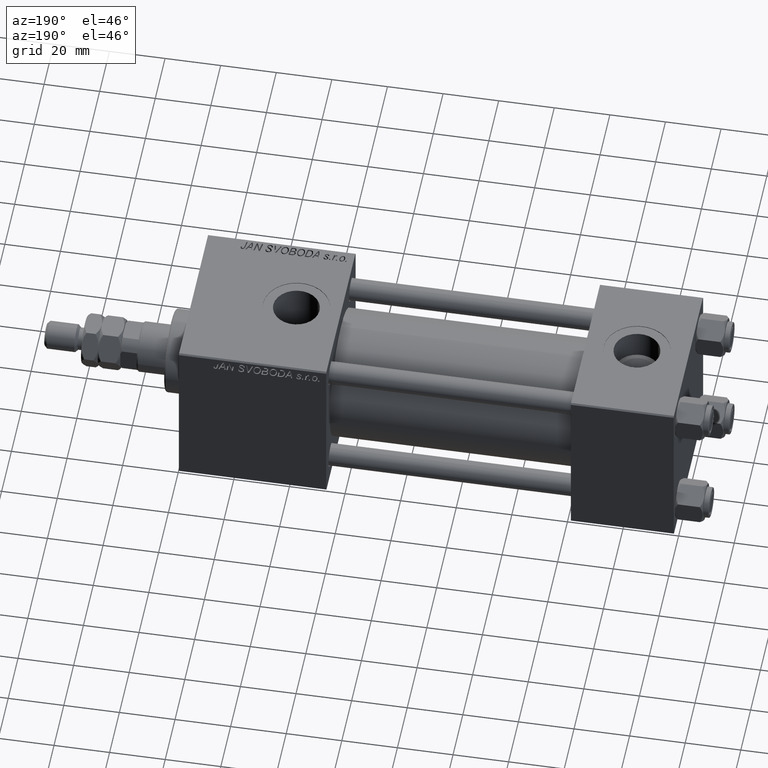
[diagram: clean part render]
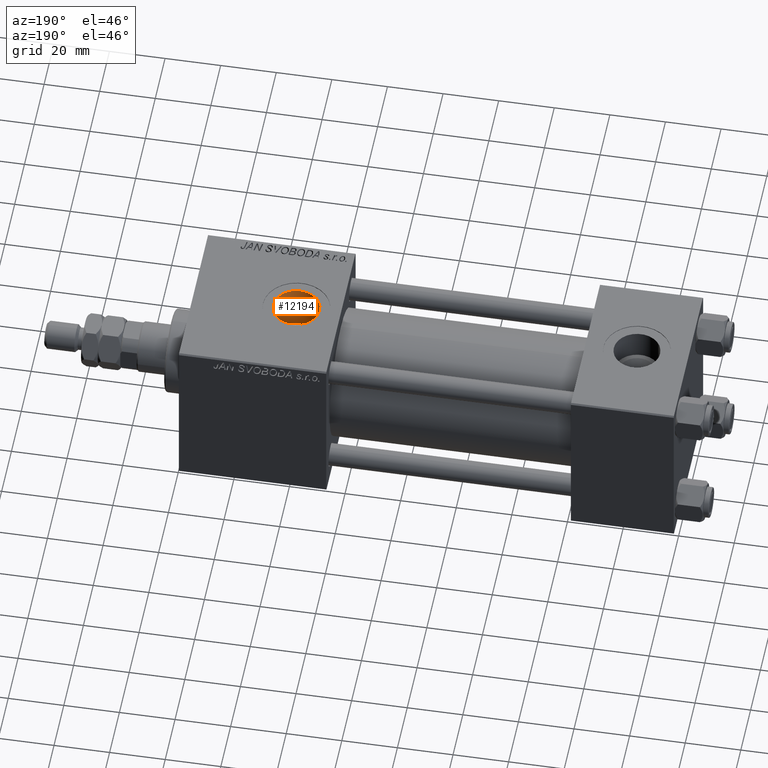
[diagram: same view with one face highlighted and labeled with its STEP entity id]
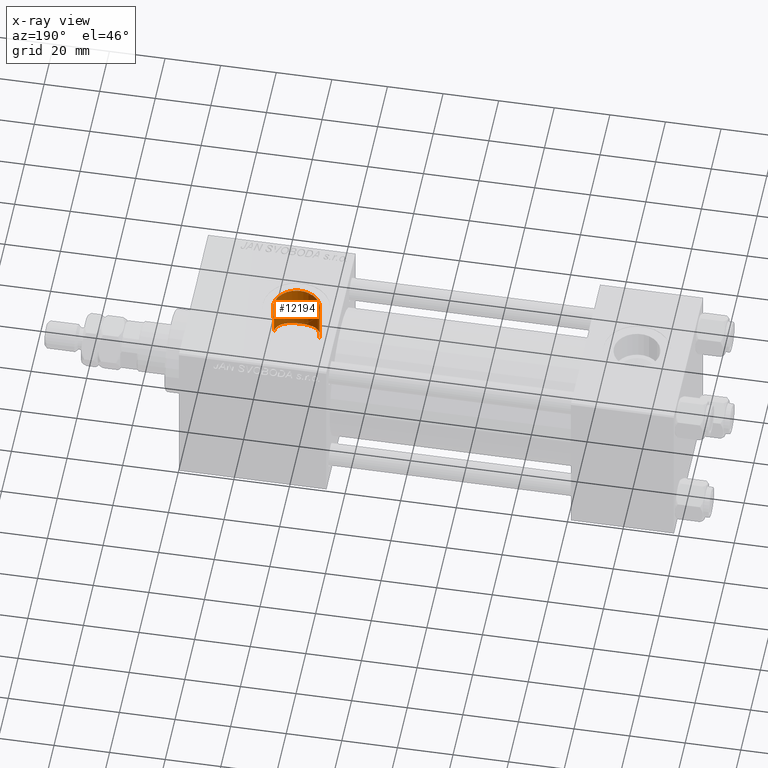
[diagram: x-ray of the same camera — body ghosted, the highlighted face saturated]
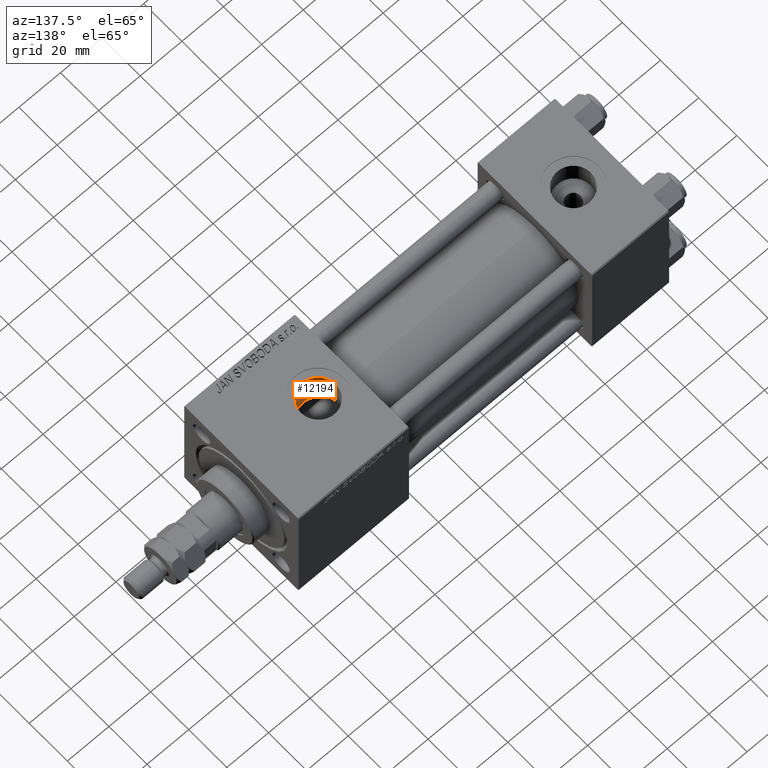
[diagram: same view with one face highlighted and labeled with its STEP entity id]
A machine part, auxiliary view. The second image highlights one B-rep face of the part: STEP entity #12194.
The next image is the same camera in x-ray: the body ghosted, the highlighted face saturated — about 0% of this face is hidden behind the body in this view.
A second angle (auxiliary view) of the same face is appended — the face is thin or edge-on in the first view.
In plain terms, the highlighted cylindrical surface (edge-blend (fillet) strip) has radius 8.33 mm, axis along (0, 0, -1).
Its self-contained STEP definition (entity closure, byte-faithful):
#8 = CARTESIAN_POINT ( 'NONE',  ( 147.4206836242460952, -5.313397845573686773, 14.56247739527535501 ) ) ;
#274 = CARTESIAN_POINT ( 'NONE',  ( 149.1551794102611268, -1.779571906496539846, 15.40624408871751427 ) ) ;
#1331 = CARTESIAN_POINT ( 'NONE',  ( 146.7052856138599850, -6.075010833985298397, 14.26111244594541283 ) ) ;
#1867 = CARTESIAN_POINT ( 'NONE',  ( 135.1746853513074598, -5.960066042194010372, 14.30973504695704079 ) ) ;
#1935 = ORIENTED_EDGE ( 'NONE', *, *, #12082, .T. ) ;
#2144 = CARTESIAN_POINT ( 'NONE',  ( 146.8918120434206571, -5.894370187512529391, 14.33695445255752965 ) ) ;
#4362 = B_SPLINE_CURVE_WITH_KNOTS ( 'NONE', 3,
 ( #43777, #38912, #6184, #31622 ),
 .UNSPECIFIED., .F., .F.,
 ( 4, 4 ),
 ( 0.0007063285354566956834, 0.001412657070913403944 ),
 .UNSPECIFIED. ) ;
#5125 = CARTESIAN_POINT ( 'NONE',  ( 138.0280831876513048, -7.800005974199693881, 13.39679247833316111 ) ) ;
#5658 = CARTESIAN_POINT ( 'NONE',  ( 145.7029727236500776, -6.895596990293902273, 13.88498614261385633 ) ) ;
#6184 = CARTESIAN_POINT ( 'NONE',  ( 149.3200361445783244, -0.4708856903044693065, 22.49630535626710426 ) ) ;
#6197 = CARTESIAN_POINT ( 'NONE',  ( 146.1223761457301578, -6.589288648760171618, 14.03465761673835566 ) ) ;
#6502 = DIRECTION ( 'NONE',  ( -0.000000000000000000, -0.000000000000000000, 1.000000000000000000 ) ) ;
#7531 = DIRECTION ( 'NONE',  ( 0.000000000000000000, 0.000000000000000000, -1.000000000000000000 ) ) ;
#8394 = CARTESIAN_POINT ( 'NONE',  ( 147.9019425821537368, -4.693185279177688685, 14.77889678387129635 ) ) ;
#9185 = CARTESIAN_POINT ( 'NONE',  ( 140.1189832292044741, -8.287746620742320047, 13.09829097645578067 ) ) ;
#9581 = CARTESIAN_POINT ( 'NONE',  ( 149.2999999999999829, -0.7063285354567054863, 22.48891060056043756 ) ) ;
#10071 = CARTESIAN_POINT ( 'NONE',  ( 132.6700000000000159, -3.469446951953613794E-15, 52.79999999999999716 ) ) ;
#10309 = VECTOR ( 'NONE', #39017, 1000.000000000000000 ) ;
#10452 = CARTESIAN_POINT ( 'NONE',  ( 132.6700000000000159, 1.898304232322969090E-15, 15.50000000000000000 ) ) ;
#10834 = LINE ( 'NONE', #51651, #29349 ) ;
#11595 = CARTESIAN_POINT ( 'NONE',  ( 141.0000000000000000, -3.469446951953613794E-15, 52.79999999999999716 ) ) ;
#12082 = EDGE_CURVE ( 'NONE', #24663, #23275, #4362, .T. ) ;
#12194 = ADVANCED_FACE ( 'NONE', ( #23771 ), #44841, .F. ) ;
#12318 = VERTEX_POINT ( 'NONE', #10452 ) ;
#12931 = DIRECTION ( 'NONE',  ( -0.000000000000000000, -0.000000000000000000, -1.000000000000000000 ) ) ;
#13516 = CARTESIAN_POINT ( 'NONE',  ( 141.7336049828113573, -8.315414581110543324, 13.08103420916272874 ) ) ;
#13794 = CARTESIAN_POINT ( 'NONE',  ( 149.3300000000000125, -2.449316168263869821E-15, 29.79999999999999716 ) ) ;
#14044 = CARTESIAN_POINT ( 'NONE',  ( 143.5758055966577444, -7.926129927251720275, 13.32055475116628074 ) ) ;
#14317 = CARTESIAN_POINT ( 'NONE',  ( 143.3226885743376045, -8.004083164222295821, 13.27368299574002641 ) ) ;
#14590 = CARTESIAN_POINT ( 'NONE',  ( 139.5800126393434653, -8.212586102783001607, 13.14554677668084892 ) ) ;
#16149 = CARTESIAN_POINT ( 'NONE',  ( 149.3300000000000125, 2.755455270027974659E-15, 22.50000000000000355 ) ) ;
#17019 = VECTOR ( 'NONE', #23815, 1000.000000000000000 ) ;
#17264 = EDGE_CURVE ( 'NONE', #48067, #12318, #18203, .T. ) ;
#17353 = VERTEX_POINT ( 'NONE', #41155 ) ;
#17843 = CARTESIAN_POINT ( 'NONE',  ( 139.3130088921948015, -8.161798413422955534, 13.17727064419119287 ) ) ;
#18203 = LINE ( 'NONE', #10071, #10309 ) ;
#18448 = EDGE_CURVE ( 'NONE', #17353, #23275, #10834, .T. ) ;
#18659 = CARTESIAN_POINT ( 'NONE',  ( 133.0868517190840805, -2.655488600773507457, 15.27904856166878567 ) ) ;
#19098 = CIRCLE ( 'NONE', #25971, 8.330000000000003624 ) ;
#19702 = VERTEX_POINT ( 'NONE', #13794 ) ;
#20543 = CARTESIAN_POINT ( 'NONE',  ( 132.6700000000000159, -3.469446951953613794E-15, 29.79999999999999716 ) ) ;
#20843 = CARTESIAN_POINT ( 'NONE',  ( 149.2536282029345216, -1.251239149034661269, 15.45904091616634624 ) ) ;
#21062 = ORIENTED_EDGE ( 'NONE', *, *, #18448, .F. ) ;
#21636 = CARTESIAN_POINT ( 'NONE',  ( 134.6334646112961195, -5.396965728881683688, 14.53569325099343246 ) ) ;
#22166 = CARTESIAN_POINT ( 'NONE',  ( 138.5303836912680993, -7.973572890763260368, 13.29262183476800274 ) ) ;
#22711 = CARTESIAN_POINT ( 'NONE',  ( 142.8051925787938785, -8.136430990711639666, 13.19297154944904982 ) ) ;
#23275 = VERTEX_POINT ( 'NONE', #9581 ) ;
#23771 = FACE_OUTER_BOUND ( 'NONE', #28562, .T. ) ;
#23815 = DIRECTION ( 'NONE',  ( 0.000000000000000000, 0.000000000000000000, -1.000000000000000000 ) ) ;
#24349 = LINE ( 'NONE', #36515, #17019 ) ;
#24645 = CARTESIAN_POINT ( 'NONE',  ( 148.5428030552849634, -3.544712500972308167, 15.09119218508025817 ) ) ;
#24663 = VERTEX_POINT ( 'NONE', #16149 ) ;
#25684 = CARTESIAN_POINT ( 'NONE',  ( 134.3099837884075214, -4.990735798376649157, 14.68174191680505203 ) ) ;
#25951 = CARTESIAN_POINT ( 'NONE',  ( 135.7620717625425755, -6.482401235301967546, 14.08060569368232606 ) ) ;
#25971 = AXIS2_PLACEMENT_3D ( 'NONE', #45648, #12931, #45915 ) ;
#26216 = CARTESIAN_POINT ( 'NONE',  ( 142.5393180270792186, -8.191046880170260280, 13.15899482924554675 ) ) ;
#27897 = ORIENTED_EDGE ( 'NONE', *, *, #40210, .F. ) ;
#28562 = EDGE_LOOP ( 'NONE', ( #27897, #37893, #1935, #21062, #47730, #52910 ) ) ;
#28691 = CARTESIAN_POINT ( 'NONE',  ( 148.8491258789661629, -2.802091215934854329, 15.24672985051145346 ) ) ;
#29349 = VECTOR ( 'NONE', #6502, 1000.000000000000000 ) ;
#30270 = CARTESIAN_POINT ( 'NONE',  ( 132.9331782841942413, -2.146294661946249072, 15.35990957131595280 ) ) ;
#30542 = CARTESIAN_POINT ( 'NONE',  ( 132.6700000000000159, -0.2697275728529907046, 15.49999999999999822 ) ) ;
#31622 = CARTESIAN_POINT ( 'NONE',  ( 149.2999999999999829, -0.7063285354567054863, 22.48891060056043756 ) ) ;
#33539 = CARTESIAN_POINT ( 'NONE',  ( 148.9348013750805251, -2.549325201696632348, 15.29111667893742776 ) ) ;
#34330 = CARTESIAN_POINT ( 'NONE',  ( 135.3654057549136951, -6.140746346287170532, 14.23292720374007203 ) ) ;
#34867 = CARTESIAN_POINT ( 'NONE',  ( 140.3883139045844359, -8.311878257887807209, 13.08292216006754849 ) ) ;
#36515 = CARTESIAN_POINT ( 'NONE',  ( 149.3300000000000125, -2.449316168263869032E-15, 52.79999999999999716 ) ) ;
#37068 = CARTESIAN_POINT ( 'NONE',  ( 149.2999999999999829, -0.7063285354567054863, 15.48389808801386991 ) ) ;
#37893 = ORIENTED_EDGE ( 'NONE', *, *, #38196, .T. ) ;
#38126 = CARTESIAN_POINT ( 'NONE',  ( 132.6830689054505115, -0.5397750835096124522, 15.49296437165993012 ) ) ;
#38196 = EDGE_CURVE ( 'NONE', #19702, #24663, #24349, .T. ) ;
#38390 = CARTESIAN_POINT ( 'NONE',  ( 141.1958509774289325, -8.345110101594283236, 13.06176967618121409 ) ) ;
#38912 = CARTESIAN_POINT ( 'NONE',  ( 149.3300000000000125, -0.2354428451522331545, 22.50000000000000355 ) ) ;
#38925 = CARTESIAN_POINT ( 'NONE',  ( 136.6049117619710671, -7.095324458822770630, 13.78473450686056445 ) ) ;
#39017 = DIRECTION ( 'NONE',  ( 0.000000000000000000, 0.000000000000000000, -1.000000000000000000 ) ) ;
#39199 = CARTESIAN_POINT ( 'NONE',  ( 144.3193855547534667, -7.658212580014129855, 13.47756053925518316 ) ) ;
#39885 = EDGE_CURVE ( 'NONE', #17353, #12318, #52231, .T. ) ;
#40210 = EDGE_CURVE ( 'NONE', #19702, #48067, #19098, .T. ) ;
#41136 = CARTESIAN_POINT ( 'NONE',  ( 148.1826768078773000, -4.251812843369769723, 14.91336181654770243 ) ) ;
#41155 = CARTESIAN_POINT ( 'NONE',  ( 149.2999999999999829, -0.7063285354567054863, 15.48389808801386991 ) ) ;
#42180 = CARTESIAN_POINT ( 'NONE',  ( 144.7954698068907646, -7.433815927027459303, 13.60442864644458183 ) ) ;
#42704 = CARTESIAN_POINT ( 'NONE',  ( 132.6700000000000159, 1.898304232322969090E-15, 15.50000000000000000 ) ) ;
#42964 = CARTESIAN_POINT ( 'NONE',  ( 132.7760409420187102, -1.352117138147092446, 15.44320659540803931 ) ) ;
#43246 = CARTESIAN_POINT ( 'NONE',  ( 137.0592140932513985, -7.358164796621732506, 13.64446967569027613 ) ) ;
#43777 = CARTESIAN_POINT ( 'NONE',  ( 149.3300000000000125, 2.755455270027974659E-15, 22.50000000000000355 ) ) ;
#44841 = CYLINDRICAL_SURFACE ( 'NONE', #52837, 8.330000000000003624 ) ;
#45191 = CARTESIAN_POINT ( 'NONE',  ( 148.6531198785858408, -3.300037631644400005, 15.14675668077581960 ) ) ;
#45648 = CARTESIAN_POINT ( 'NONE',  ( 141.0000000000000000, -3.469446951953613794E-15, 29.79999999999999716 ) ) ;
#45915 = DIRECTION ( 'NONE',  ( 1.000000000000000000, 0.000000000000000000, 0.000000000000000000 ) ) ;
#47730 = ORIENTED_EDGE ( 'NONE', *, *, #39885, .T. ) ;
#48067 = VERTEX_POINT ( 'NONE', #20543 ) ;
#49419 = DIRECTION ( 'NONE',  ( -1.000000000000000000, 0.000000000000000000, 0.000000000000000000 ) ) ;
#49493 = CARTESIAN_POINT ( 'NONE',  ( 147.2493350041375209, -5.513878949387109429, 14.48754643870559988 ) ) ;
#50545 = CARTESIAN_POINT ( 'NONE',  ( 133.4869951611570968, -3.636522200691669759, 15.07569736173248032 ) ) ;
#50806 = CARTESIAN_POINT ( 'NONE',  ( 132.7359107352509966, -1.080522372059885994, 15.46466209025531491 ) ) ;
#51355 = CARTESIAN_POINT ( 'NONE',  ( 135.9674296848607469, -6.643042862437831708, 14.00528882879478765 ) ) ;
#51623 = CARTESIAN_POINT ( 'NONE',  ( 133.7370422418973135, -4.112566756246519795, 14.95151444490773862 ) ) ;
#51651 = CARTESIAN_POINT ( 'NONE',  ( 149.2999999999999829, -0.7063285354567054863, 52.79999999999999716 ) ) ;
#52231 = B_SPLINE_CURVE_WITH_KNOTS ( 'NONE', 3,
 ( #37068, #20843, #274, #33539, #28691, #45191, #24645, #41136, #8394, #8, #49493, #2144, #1331, #6197, #5658, #42180, #39199, #14044, #14317, #22711, #26216, #13516, #38390, #34867, #9185, #14590, #17843, #22166, #5125, #43246, #38925, #51355, #25951, #34330, #1867, #21636, #25684, #51623, #50545, #18659, #30270, #42964, #50806, #38126, #30542, #42704 ),
 .UNSPECIFIED., .F., .F.,
 ( 4, 2, 2, 2, 2, 2, 2, 2, 2, 2, 2, 2, 2, 2, 2, 2, 2, 2, 2, 2, 2, 2, 4 ),
 ( 0.000000000000000000, 0.001616601094056660309, 0.002424901641085002064, 0.003233202188113343169, 0.004849803282169991119, 0.005658103829198314443, 0.006466404376226637767, 0.008083005470283226301, 0.009699606564339813969, 0.01050790711136806790, 0.01131620765839632357, 0.01293280875245291298, 0.01374110929948125018, 0.01454940984650958738, 0.01616601094056625831, 0.01778261203462292925, 0.01859091258165126298, 0.01939921312867959324, 0.02101581422273631969, 0.02263241531679304266, 0.02424901641084976564, 0.02505731695787812713, 0.02586561750490648862 ),
 .UNSPECIFIED. ) ;
#52837 = AXIS2_PLACEMENT_3D ( 'NONE', #11595, #7531, #49419 ) ;
#52910 = ORIENTED_EDGE ( 'NONE', *, *, #17264, .F. ) ;